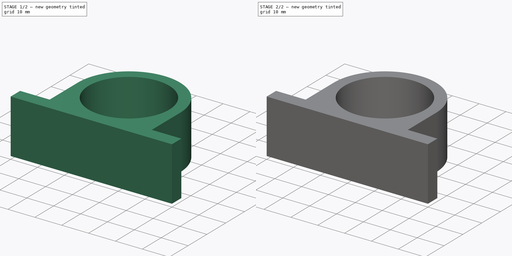
[diagram: build sequence overview — one tinted view per stage of 2, left to right]
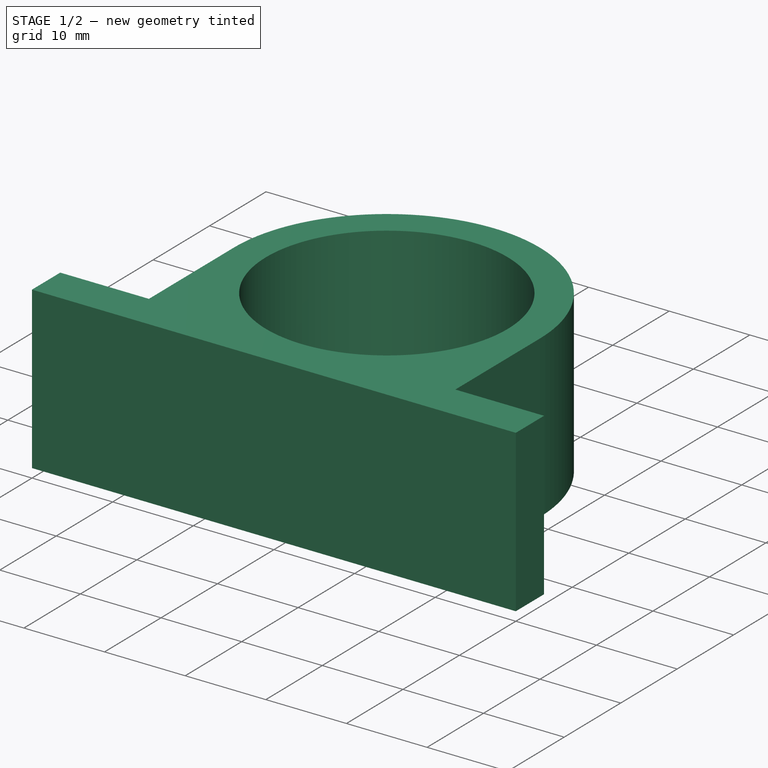
[diagram: stage 1 of 2 — iso view after this stage's code; geometry added in this stage tinted green]
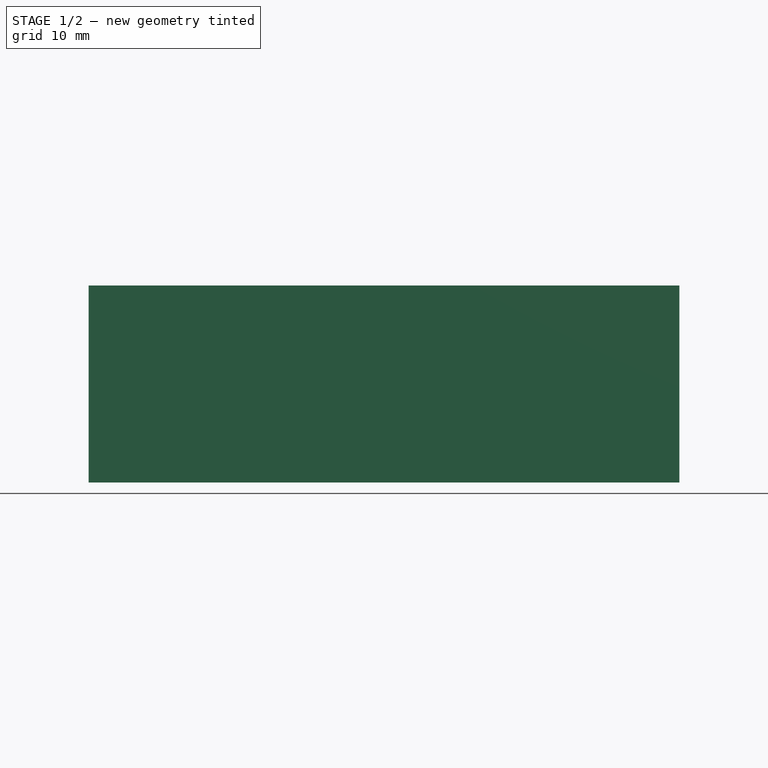
[diagram: stage 1 of 2 — front view after this stage's code; geometry added in this stage tinted green]
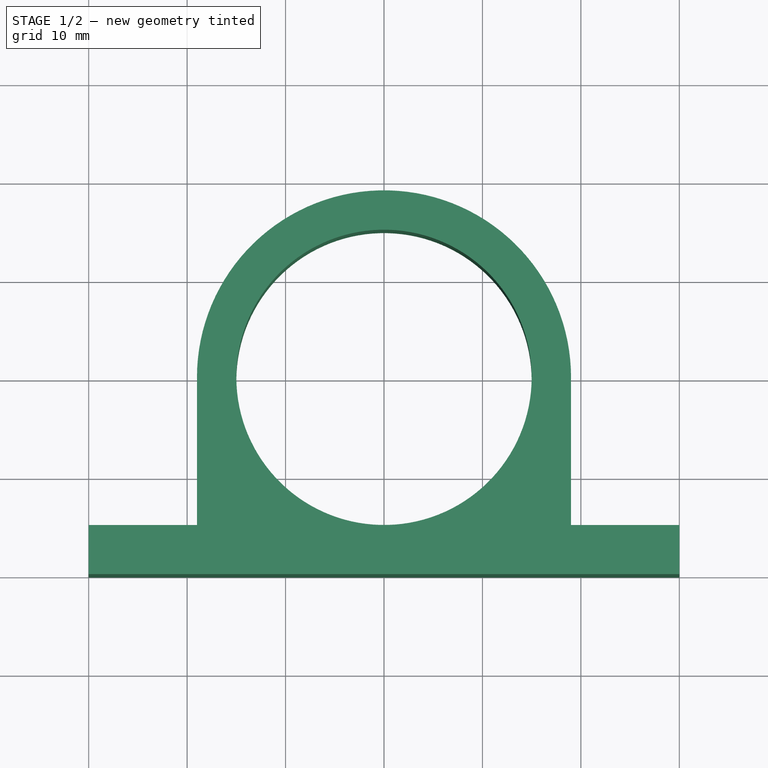
[diagram: stage 1 of 2 — top view after this stage's code; geometry added in this stage tinted green]
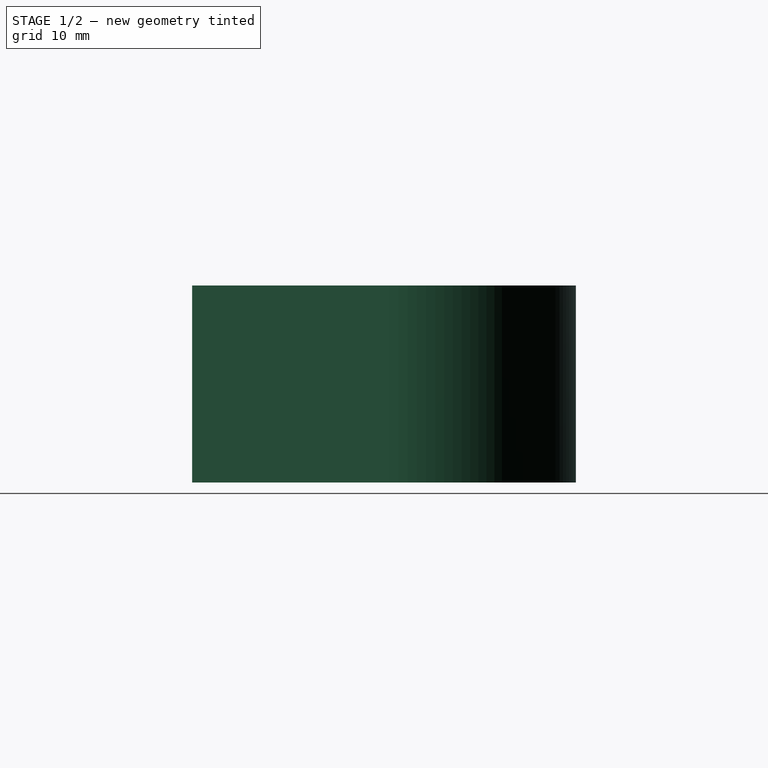
[diagram: stage 1 of 2 — right view after this stage's code; geometry added in this stage tinted green]
FCSTD DOCUMENT  (FreeCAD 0.17RUnknown)
Label: holder
License: All rights reserved
LicenseURL: http://en.wikipedia.org/wiki/All_rights_reserved
objects: Sketcher::SketchObject×2, PartDesign::Pad×2, PartDesign::Body×1
note: 7 computed .brp shape members not serialized (recipe doc carries the construction recipe); baked Part::Feature solids carry a one-line shape summary decoded from their .brp

FEATURE [Sketcher::SketchObject] Sketch
  MapMode = 5
  Support = -> [XY_Plane]
  sketch-geometry (9):
    g0: LineSegment StartX=30 StartY=5 StartZ=0 EndX=30 EndY=0 EndZ=0
    g1: LineSegment StartX=30 StartY=0 StartZ=0 EndX=-30 EndY=0 EndZ=0
    g2: LineSegment StartX=-30 StartY=0 StartZ=0 EndX=-30 EndY=5 EndZ=0
    g3: LineSegment StartX=-19 StartY=20 StartZ=0 EndX=-19 EndY=5 EndZ=0
    g4: LineSegment StartX=19 StartY=20 StartZ=0 EndX=19 EndY=5 EndZ=0
    g5: ArcOfCircle CenterX=0 CenterY=20 CenterZ=0 NormalX=0 NormalY=0 NormalZ=1 AngleXU=0 Radius=19 StartAngle=0 EndAngle=3.14159
    g6: LineSegment StartX=-30 StartY=5 StartZ=0 EndX=-19 EndY=5 EndZ=0
    g7: LineSegment StartX=19 StartY=5 StartZ=0 EndX=30 EndY=5 EndZ=0
    g8: Circle CenterX=0 CenterY=20 CenterZ=0 NormalX=0 NormalY=0 NormalZ=1 AngleXU=0 Radius=15
  constraints (24):
    c: Coincident(g0,g1)
    c: Coincident(g1,g2)
    c: Coincident(g5,g4)
    c: Coincident(g3,g5)
    c: Coincident(g6,g2)
    c: Coincident(g6,g3)
    c: Coincident(g7,g0)
    c: Coincident(g8,g5)
    c: Coincident(g4,g7)
    c: PointOnObject(g0,g-1)
    c: PointOnObject(g5,g-2)
    c: Symmetric(g2,g0,g-2)
    c: Symmetric(g3,g4,g-2)
    c: Symmetric(g4,g3,g-2)
    c: Symmetric(g0,g1,g-2)
    c: Parallel(g0,g-2)
    c: Parallel(g7,g-1)
    c: Parallel(g4,g-2)
    c: Angle(g5) = 3.14159
    c: Distance(g0) = 5
    c: Radius(g8) = 15
    c: Radius(g5) = 19
    c: Distance(g4) = 15
    c: Distance(g-1,g0) = 30
FEATURE [PartDesign::Pad] Pad
  Length = 20
  Length2 = 100
  Profile = -> Sketch
  Type = 0
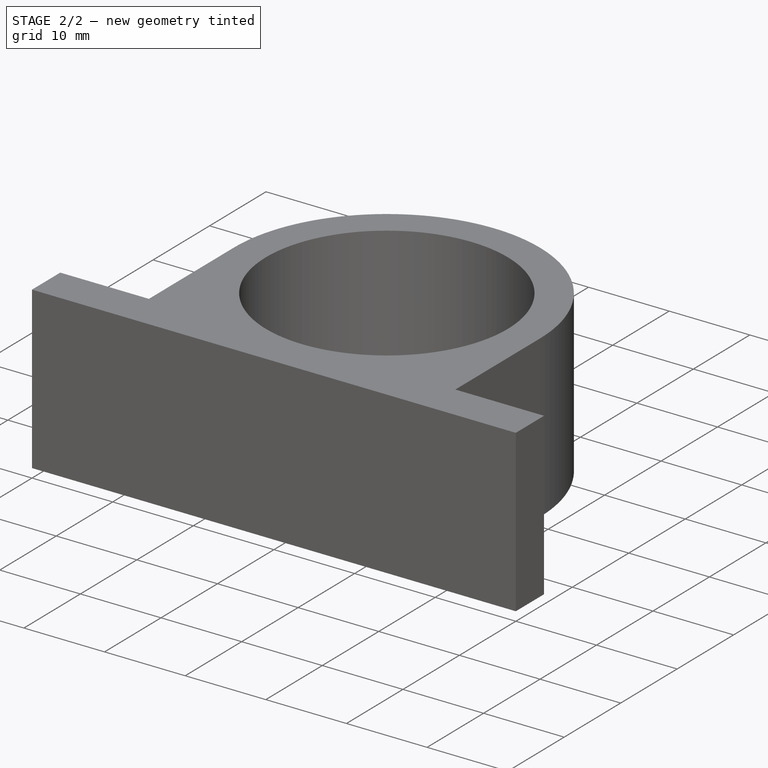
[diagram: stage 2 of 2 — iso view after this stage's code; geometry added in this stage tinted green]
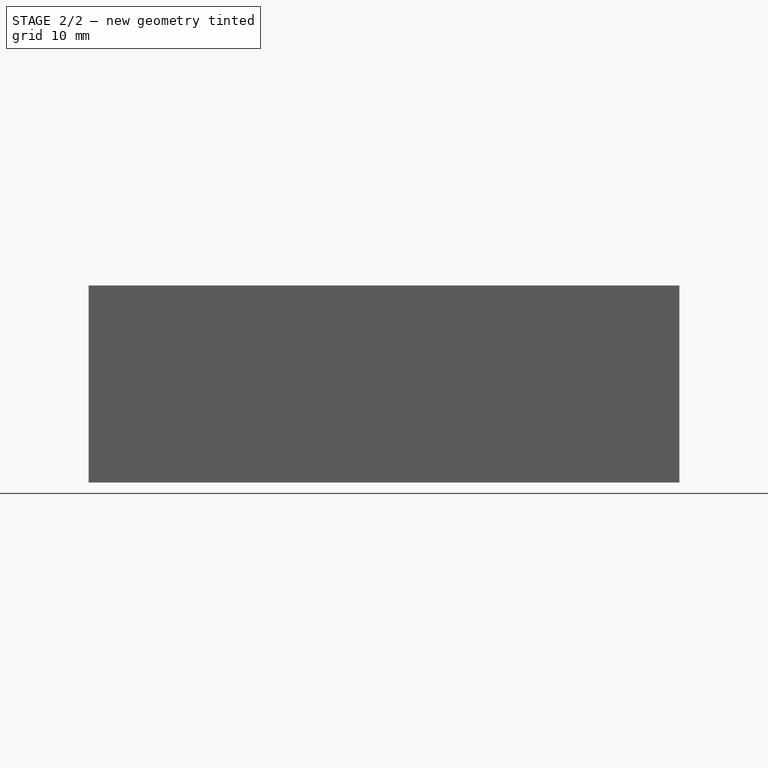
[diagram: stage 2 of 2 — front view after this stage's code; geometry added in this stage tinted green]
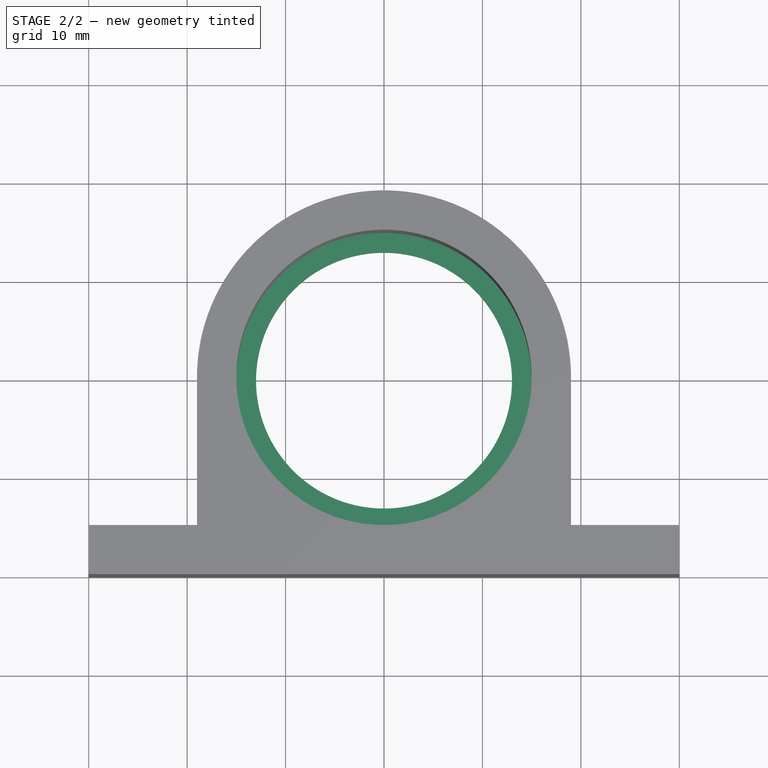
[diagram: stage 2 of 2 — top view after this stage's code; geometry added in this stage tinted green]
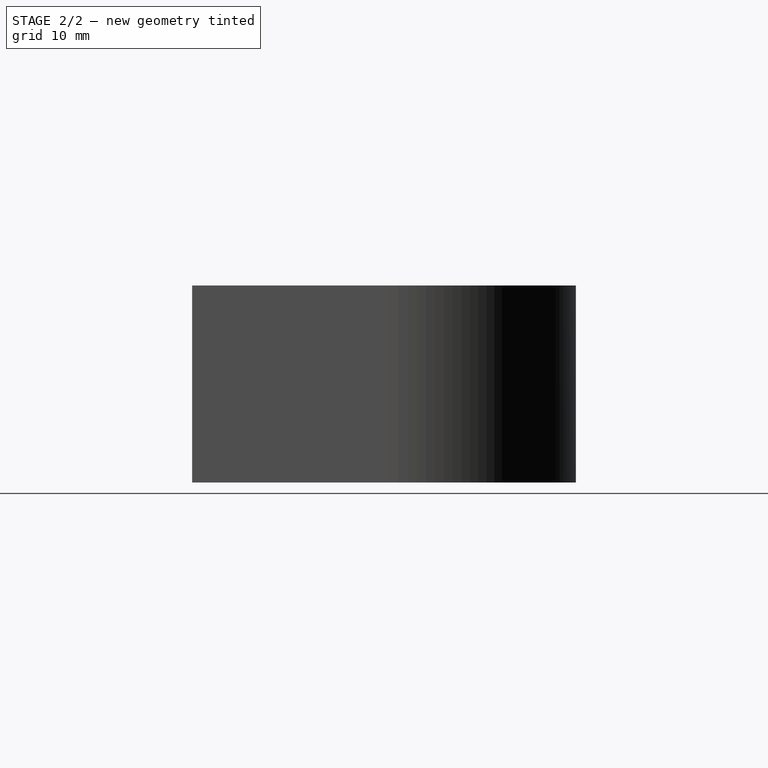
[diagram: stage 2 of 2 — right view after this stage's code; geometry added in this stage tinted green]
FEATURE [Sketcher::SketchObject] Sketch001
  ExternalGeometry = -> [Pad]
  MapMode = 5
  Placement = pos=(0,0,0) rot=(1,0,0;3.14159rad)
  Support = -> [Pad]
  sketch-geometry (9):
    g0: ArcOfCircle CenterX=0 CenterY=-20 CenterZ=0 NormalX=0 NormalY=0 NormalZ=1 AngleXU=0 Radius=19 StartAngle=3.14159 EndAngle=6.28319
    g1: LineSegment StartX=-19 StartY=-20 StartZ=0 EndX=-19 EndY=-5 EndZ=0
    g2: LineSegment StartX=-19 StartY=-5 StartZ=0 EndX=-30 EndY=-5 EndZ=0
    g3: LineSegment StartX=-30 StartY=-5 StartZ=0 EndX=-30 EndY=0 EndZ=0
    g4: LineSegment StartX=-30 StartY=0 StartZ=0 EndX=30 EndY=0 EndZ=0
    g5: LineSegment StartX=30 StartY=0 StartZ=0 EndX=30 EndY=-5 EndZ=0
    g6: LineSegment StartX=30 StartY=-5 StartZ=0 EndX=19 EndY=-5 EndZ=0
    g7: LineSegment StartX=19 StartY=-5 StartZ=0 EndX=19 EndY=-20 EndZ=0
    g8: Circle CenterX=0 CenterY=-20 CenterZ=0 NormalX=0 NormalY=0 NormalZ=1 AngleXU=0 Radius=13
  constraints (19):
    c: Coincident(g0,g-3)
    c: Coincident(g0,g-3)
    c: Coincident(g0,g-3)
    c: Coincident(g1,g0)
    c: Coincident(g1,g-4)
    c: Coincident(g2,g1)
    c: Coincident(g2,g-5)
    c: Coincident(g3,g2)
    c: Coincident(g3,g-6)
    c: Coincident(g4,g3)
    c: Coincident(g4,g-7)
    c: Coincident(g5,g4)
    c: Coincident(g5,g-8)
    c: Coincident(g6,g5)
    c: Coincident(g6,g-9)
    c: Coincident(g7,g6)
    c: Coincident(g7,g0)
    c: Coincident(g8,g0)
    c: Radius(g8) = 13
FEATURE [PartDesign::Pad] Pad001
  BaseFeature = -> Pad
  Length = 1
  Length2 = 100
  Profile = -> Sketch001
  Reversed = true
  Type = 0
FEATURE [PartDesign::Body] Body
  Group = -> [Sketch,Pad,Sketch001,Pad001]
  Origin = -> Origin
  Tip = -> Pad001
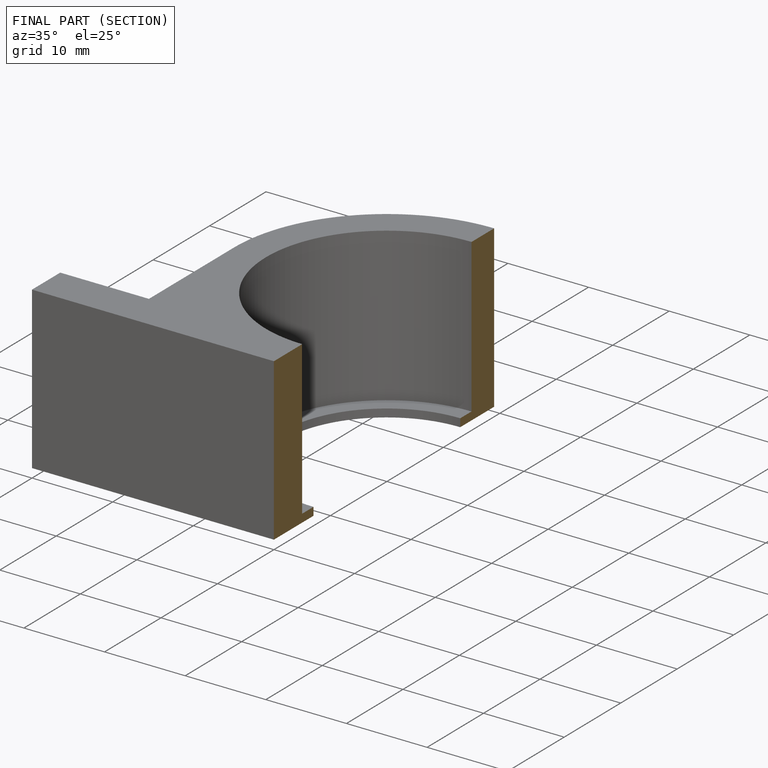
[diagram: finished part — half-section view (interior)]
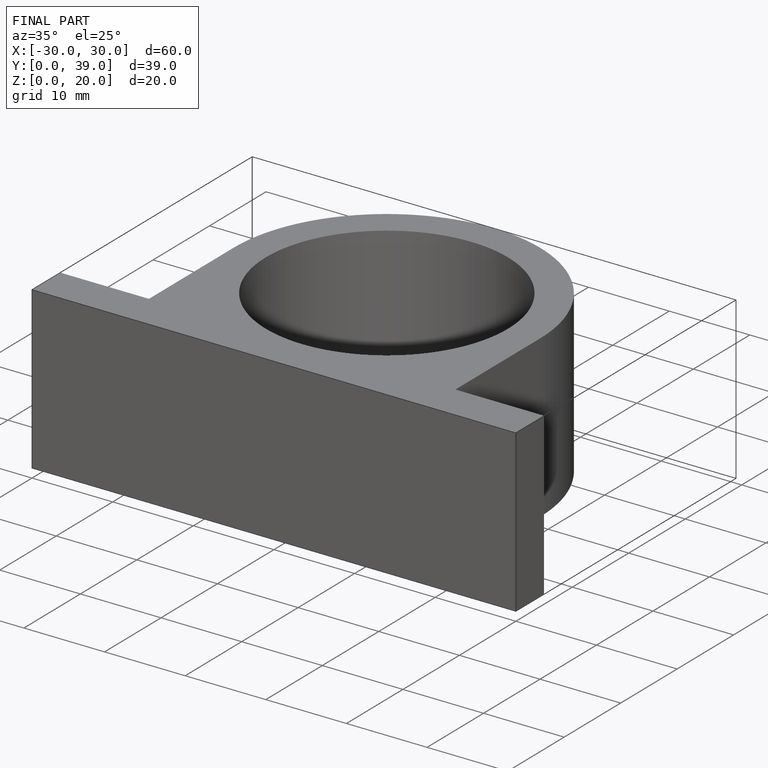
[diagram: finished part — iso view with bounding-box wireframe]
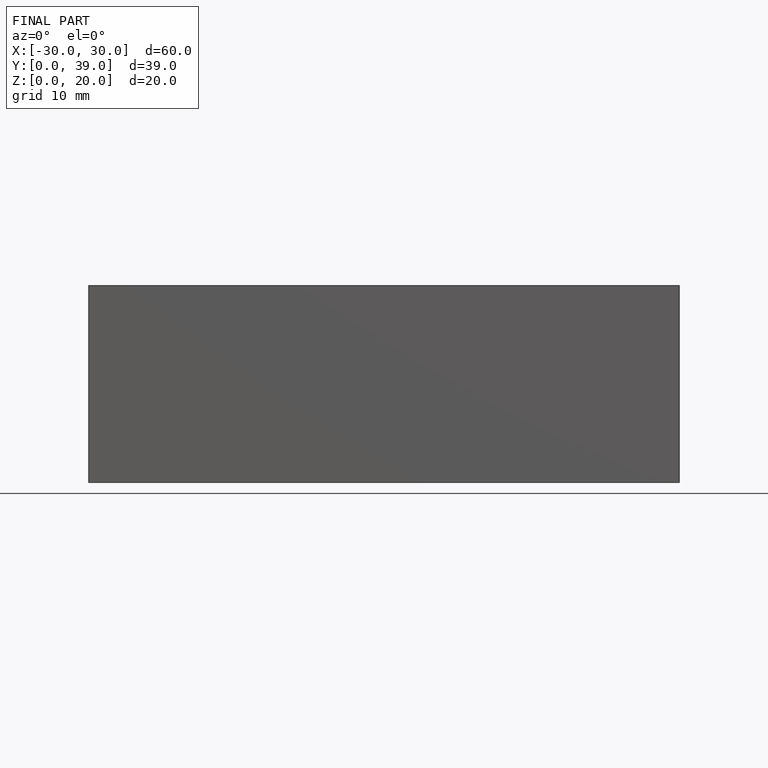
[diagram: finished part — front view with bounding-box wireframe]
